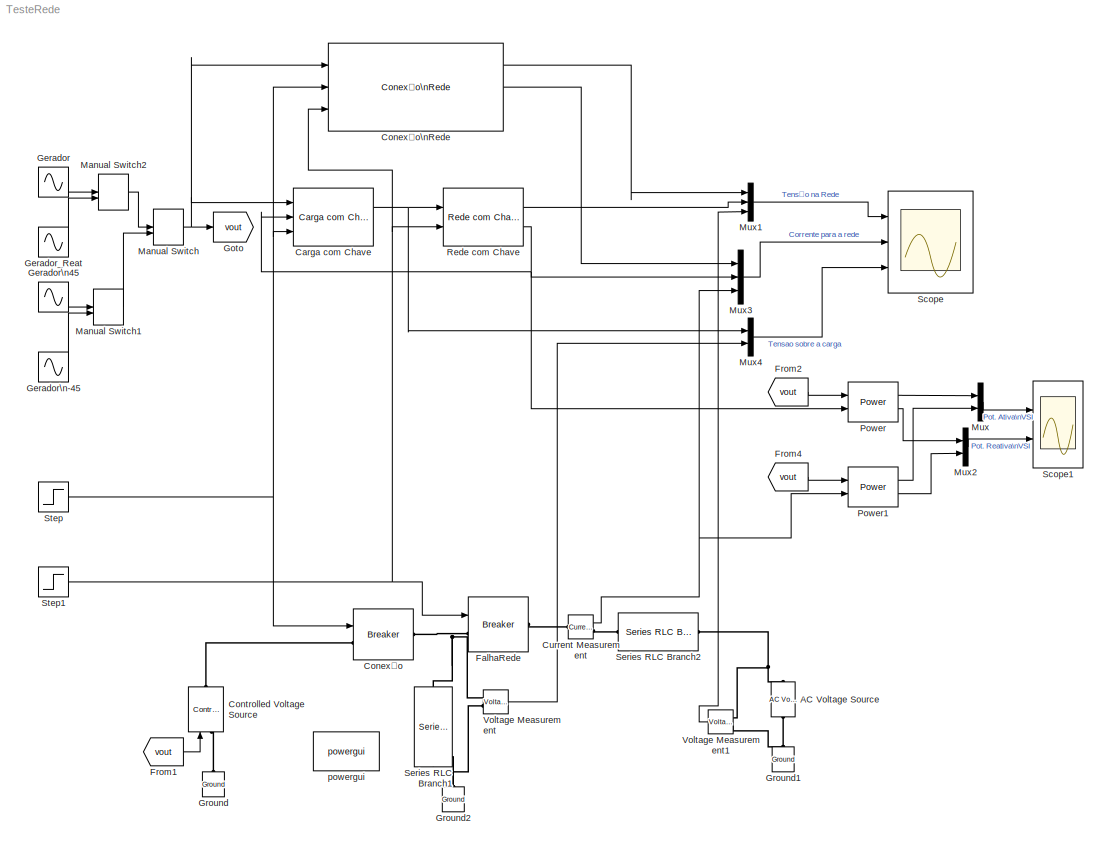
MODEL TesteRede
KIND model
BLOCK [Reference] AC Voltage Source  REF=powerlib/Electrical\nSources/AC Voltage Source
  Amplitude = 181
  Frequency = 60
  Measurements = None
  Phase = 0
  Ports = [0, 0, 0, 0, 0, 1, 1]
  SID = 77
  SampleTime = 0
  SourceBlock = powerlib/Electrical\nSources/AC Voltage Source
  SourceType = AC Voltage Source
BLOCK [Reference] Carga com Chave  REF=AvgModels/Carga com Chave
  Ports = [3, 2]
  Rl = 10
  Rsmax = 1e6
  Rsmin = 0.1
  SID = 113
  SourceBlock = AvgModels/Carga com Chave
  SourceType = Modelo Médio de Conexao com a Rede
BLOCK [Reference] Conexão  REF=powerlib/Elements/Breaker
  BreakerResistance = 0.01
  External = on
  InitialState = 0
  Measurements = None
  MoreParameters = on
  NoBreakLoop = off
  Ports = [1, 0, 0, 0, 0, 1, 1]
  SID = 80
  SnubberCapacitance = inf
  SnubberResistance = 1e6
  SourceBlock = powerlib/Elements/Breaker
  SourceType = Breaker
  SwitchingTimes = [1/60  5/60]
BLOCK [Reference] Conexão\nRede  REF=AvgModels/Conexão\nRede
  Lg = 10e-3
  Ports = [3, 3]
  Rg = 0.1
  Rl = 10
  Rsmax = 1e6
  Rsmin = 0.1
  SID = 115
  SourceBlock = AvgModels/Conexão\nRede
  SourceType = Modelo Médio de Conexao com a Rede
  Vrede = 127
  frede = 60
BLOCK [Reference] Controlled Voltage Source  REF=powerlib/Electrical\nSources/Controlled Voltage Source
  Amplitude = 127
  Frequency = 60
  Initialize = on
  Measurements = None
  Phase = 0
  Ports = [1, 0, 0, 0, 0, 1, 1]
  SID = 82
  SourceBlock = powerlib/Electrical\nSources/Controlled Voltage Source
  SourceType = Controlled Voltage Source
  Source_Type = AC
BLOCK [Reference] Current Measurement  REF=powerlib/Measurements/Current Measurement
  OutputType = Complex
  PSBequivalent = 0
  PhasorSimulation = off
  Ports = [0, 1, 0, 0, 0, 1, 1]
  SID = 88
  SourceBlock = powerlib/Measurements/Current Measurement
  SourceType = Current Measurement
  UserDataPersistent = on
BLOCK [Reference] FalhaRede  REF=powerlib/Elements/Breaker
  BreakerResistance = 0.01
  External = on
  InitialState = 1
  Measurements = None
  MoreParameters = on
  NoBreakLoop = off
  Ports = [1, 0, 0, 0, 0, 1, 1]
  SID = 81
  SnubberCapacitance = inf
  SnubberResistance = 1e6
  SourceBlock = powerlib/Elements/Breaker
  SourceType = Breaker
  SwitchingTimes = [2]
BLOCK [From] From1
  GotoTag = vout
  SID = 101
BLOCK [From] From2
  GotoTag = vout
  SID = 102
BLOCK [From] From4
  GotoTag = vout
  SID = 105
BLOCK [Sin] Gerador
  Amplitude = 127*sqrt(2)
  Frequency = 60*2*pi
  Ports = [0, 1]
  SID = 92
  SampleTime = 0
BLOCK [Sin] Gerador\n-45
  Amplitude = 127*sqrt(2)
  Frequency = 60*2*pi
  Phase = -pi/4
  Ports = [0, 1]
  SID = 93
  SampleTime = 0
BLOCK [Sin] Gerador\n45
  Amplitude = 127*sqrt(2)
  Frequency = 60*2*pi
  Phase = pi/12
  Ports = [0, 1]
  SID = 94
  SampleTime = 0
BLOCK [Sin] Gerador_Reat
  Amplitude = 127*sqrt(2)+10
  Frequency = 60*2*pi
  Ports = [0, 1]
  SID = 95
  SampleTime = 0
BLOCK [Goto] Goto
  GotoTag = vout
  SID = 99
BLOCK [Reference] Ground  REF=powerlib/Elements/Ground
  LConnTagsString = a
  Ports = [0, 0, 0, 0, 0, 1]
  SID = 83
  SourceBlock = powerlib/Elements/Ground
  SourceType = Ground
BLOCK [Reference] Ground1  REF=powerlib/Elements/Ground
  LConnTagsString = a
  Ports = [0, 0, 0, 0, 0, 1]
  SID = 84
  SourceBlock = powerlib/Elements/Ground
  SourceType = Ground
BLOCK [Reference] Ground2  REF=powerlib/Elements/Ground
  LConnTagsString = a
  Ports = [0, 0, 0, 0, 0, 1]
  SID = 87
  SourceBlock = powerlib/Elements/Ground
  SourceType = Ground
BLOCK [ManualSwitch] Manual Switch
  CurrentSetting = 0
  SID = 96
BLOCK [ManualSwitch] Manual Switch1
  SID = 97
BLOCK [ManualSwitch] Manual Switch2
  SID = 98
BLOCK [Mux] Mux
  DisplayOption = bar
  Inputs = 2
  Ports = [2, 1]
  SID = 21
BLOCK [Mux] Mux1
  DisplayOption = bar
  Inputs = 3
  Ports = [3, 1]
  SID = 74
BLOCK [Mux] Mux2
  DisplayOption = bar
  Inputs = 2
  Ports = [2, 1]
  SID = 109
BLOCK [Mux] Mux3
  DisplayOption = bar
  Inputs = 3
  Ports = [3, 1]
  SID = 110
BLOCK [Mux] Mux4
  DisplayOption = bar
  Inputs = 2
  Ports = [2, 1]
  SID = 117
BLOCK [Reference] Power  REF=powerlib_meascontrol/Measurements/Power
  Freq = 60
  Iinit = [1, 0]
  Ports = [2, 2]
  SID = 76
  SourceBlock = powerlib_meascontrol/Measurements/Power
  SourceType = Power
  Ts = 0
  Vinit = [1, 0]
BLOCK [Reference] Power1  REF=powerlib_meascontrol/Measurements/Power
  Freq = 60
  Iinit = [1, 0]
  Ports = [2, 2]
  SID = 104
  SourceBlock = powerlib_meascontrol/Measurements/Power
  SourceType = Power
  Ts = 0
  Vinit = [1, 0]
BLOCK [Reference] Rede com Chave  REF=AvgModels/Rede com Chave
  Lg = 10e-3
  Ports = [2, 2]
  Rg = 0.1
  Rsmax = 1e6
  Rsmin = 0.01
  SID = 111
  SourceBlock = AvgModels/Rede com Chave
  SourceType = Modelo Médio de Conexao com a Rede
  Vrede = 127
  frede = 60
BLOCK [Scope] Scope
  DataFormat = StructureWithTime
  Floating = off
  LimitDataPoints = off
  NumInputPorts = 3
  Ports = [3]
  SID = 55
  SampleTime = 0
  SaveName = dados
  SaveToWorkspace = on
  TimeRange = 3
  YMax = 200~20~1500
  YMin = -200~-20~-1500
  ZoomMode = xonly
BLOCK [Scope] Scope1
  DataFormat = StructureWithTime
  Floating = off
  LimitDataPoints = off
  NumInputPorts = 2
  Ports = [2]
  SID = 114
  SampleTime = 0
  SaveName = dados1
  SaveToWorkspace = on
  TimeRange = 3
  YMax = 1500~400
  YMin = -1500~-1200
  ZoomMode = xonly
BLOCK [Reference] Series RLC Branch1  REF=powerlib/Elements/Series RLC Branch
  BranchType = R
  Capacitance = 1e-6
  Inductance = 10e-3
  InitialCurrent = 0
  InitialVoltage = 0
  LConnTagsString = __new0
  Measurements = None
  Ports = [0, 0, 0, 0, 0, 1, 1]
  RConnTagsString = __new0
  Resistance = 10
  SID = 108
  SetiL0 = off
  Setx0 = off
  SourceBlock = powerlib/Elements/Series RLC Branch
  SourceType = Series RLC Branch
BLOCK [Reference] Series RLC Branch2  REF=powerlib/Elements/Series RLC Branch
  BranchType = RL
  Capacitance = 1e-6
  Inductance = 10e-3
  InitialCurrent = 0
  InitialVoltage = 0
  LConnTagsString = __new0
  Measurements = None
  Ports = [0, 0, 0, 0, 0, 1, 1]
  RConnTagsString = __new0
  Resistance = 0.1
  SID = 112
  SetiL0 = off
  Setx0 = off
  SourceBlock = powerlib/Elements/Series RLC Branch
  SourceType = Series RLC Branch
BLOCK [Step] Step
  SID = 106
  SampleTime = 0
BLOCK [Step] Step1
  After = 0
  Before = 1
  SID = 107
  SampleTime = 0
  Time = 2
BLOCK [Reference] Voltage Measurement  REF=powerlib/Measurements/Voltage Measurement
  OutputType = Complex
  PSBequivalent = 0
  PhasorSimulation = off
  Ports = [0, 1, 0, 0, 0, 2]
  SID = 86
  SourceBlock = powerlib/Measurements/Voltage Measurement
  SourceType = Voltage Measurement
  UserDataPersistent = on
BLOCK [Reference] Voltage Measurement1  REF=powerlib/Measurements/Voltage Measurement
  OutputType = Complex
  PSBequivalent = 0
  PhasorSimulation = off
  Ports = [0, 1, 0, 0, 0, 2]
  SID = 116
  SourceBlock = powerlib/Measurements/Voltage Measurement
  SourceType = Voltage Measurement
  UserDataPersistent = on
BLOCK [Reference] powergui  REF=powerlib/powergui
  DisableRonSwitches = off
  DisableSnubberDevices = off
  DisableVfSwitches = off
  DisplayEquations = off
  DisplayStyle = 1
  EnableUseOfTLC = off
  ErrMax = 1e-4
  Frange = [0:2:500]
  FreqAxis = off
  FunctionMessages = off
  HookPort = off
  Interpol = off
  Iterations = 50
  MaxFrequency = 1000
  Pbase = 100e6
  Ports = []
  Priority = 1
  ResistiveCurrentMeasurement = off
  RestoreLinks = warning
  RmsSteady = 1
  SID = 78
  SPID = off
  SampleTime = 50e-6
  ShowGrid = off
  SolverType = Tustin/Backward Euler (TBE)
  SourceBlock = powerlib/powergui
  SourceType = PSB option menu block
  StartTime = 0.0
  SwTol = 0
  Ts = 100
  UnitsV = kV
  UnitsW = MW
  UserDataPersistent = on
  Xlog = on
  Ylog = off
  ZoomFFT = off
  buscounter = 0
  cycles = 1
  display = off
  echomessages = off
  frequency = 60
  frequencyindice = 60
  frequencyindicesteady = 1
  fundamental = 60
  methode = off
  save = off
  structure = 0
  variable = ZData
  x0status = blocks
NET Carga com Chave:1 -> Mux4:1, Rede com Chave:1
LINE Conexão\nRede:1 -> Mux1:1
LINE Conexão\nRede:2 -> Mux3:1
NET Current Measurement:1 -> Mux3:3, Power1:2
LINE From1:1 -> Controlled Voltage Source:1
LINE From2:1 -> Power:1
LINE From4:1 -> Power1:1
LINE Gerador:1 -> Manual Switch2:1
LINE Gerador\n-45:1 -> Manual Switch1:2
LINE Gerador\n45:1 -> Manual Switch1:1
LINE Gerador_Reat:1 -> Manual Switch2:2
LINE Manual Switch1:1 -> Manual Switch:2
LINE Manual Switch2:1 -> Manual Switch:1
NET Manual Switch:1 -> Carga com Chave:1, Conexão\nRede:1, Goto:1
LINE Mux1:1 -> Scope:1
LINE Mux2:1 -> Scope1:2
LINE Mux3:1 -> Scope:2
LINE Mux4:1 -> Scope:3
LINE Mux:1 -> Scope1:1
LINE Power1:1 -> Mux:2
LINE Power1:2 -> Mux2:2
LINE Power:1 -> Mux:1
LINE Power:2 -> Mux2:1
LINE Rede com Chave:1 -> Mux1:2
NET Rede com Chave:2 -> Carga com Chave:2, Mux3:2, Power:2
NET Step1:1 -> Conexão\nRede:3, FalhaRede:1, Rede com Chave:2
NET Step:1 -> Carga com Chave:3, Conexão:1, Conexão\nRede:2
LINE Voltage Measurement1:1 -> Mux1:3
LINE Voltage Measurement:1 -> Mux4:2
PNET net1: AC Voltage Source:LConn1 -- Ground1:LConn1 -- Voltage Measurement1:LConn2
PNET net2: AC Voltage Source:RConn1 -- Series RLC Branch2:RConn1 -- Voltage Measurement1:LConn1
PLINE Conexão:LConn1 -- Controlled Voltage Source:RConn1
PNET net3: Conexão:RConn1 -- FalhaRede:LConn1 -- Series RLC Branch1:LConn1 -- Voltage Measurement:LConn1
PLINE Controlled Voltage Source:LConn1 -- Ground:LConn1
PLINE Current Measurement:LConn1 -- FalhaRede:RConn1
PLINE Current Measurement:RConn1 -- Series RLC Branch2:LConn1
PNET net4: Ground2:LConn1 -- Series RLC Branch1:RConn1 -- Voltage Measurement:LConn2
note: NET lines group one-source signal fan-out (src -> all destinations, sorted); 1:1 wires keep LINE; PNET lines group multi-terminal physical nets as a canonical sorted terminal list (undirected conserving connections); 2-terminal nets keep the pairwise PLINE form
